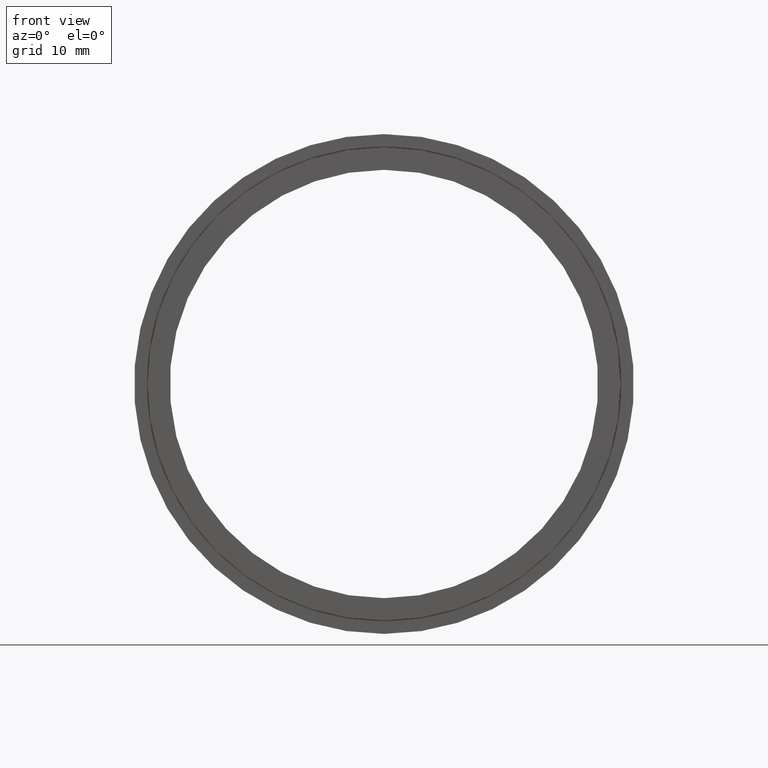
[diagram: clean part render]
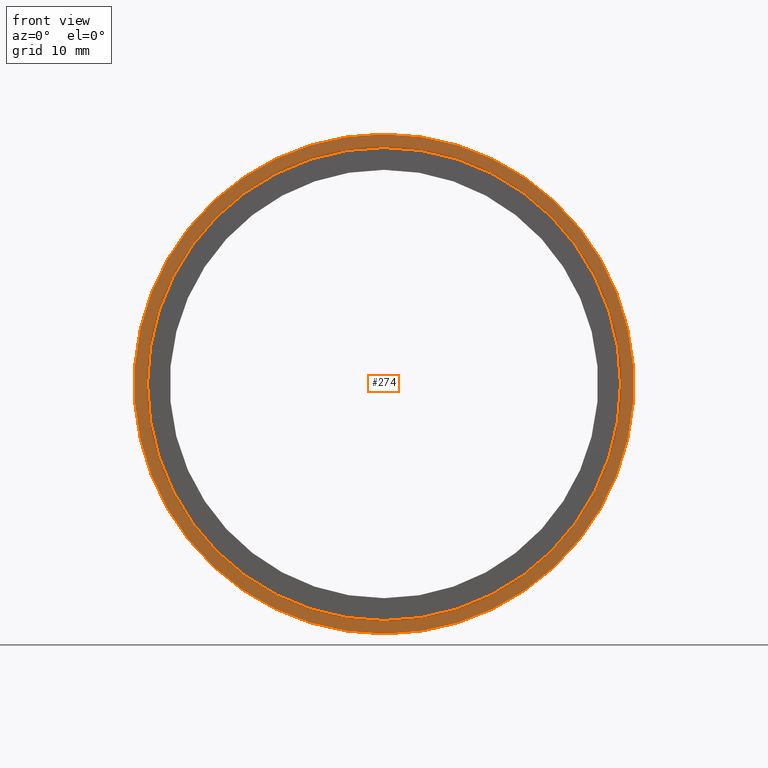
[diagram: same view with one face highlighted and labeled with its STEP entity id]
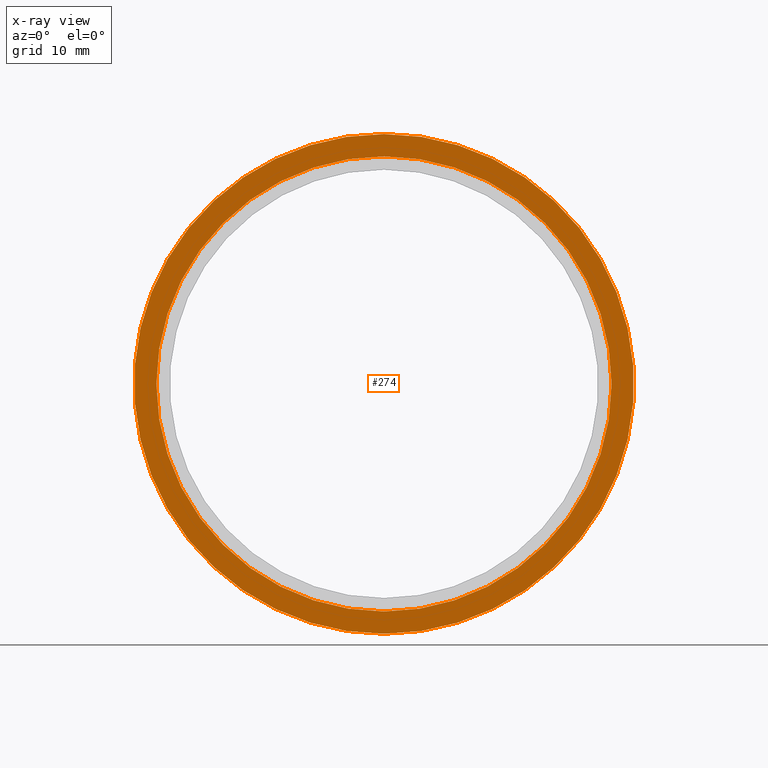
[diagram: x-ray of the same camera — body ghosted, the highlighted face saturated]
A machine part, front view. The second image highlights one B-rep face of the part: STEP entity #274.
The next image is the same camera in x-ray: the body ghosted, the highlighted face saturated — about 0% of this face is hidden behind the body in this view.
In plain terms, the highlighted planar face has unit normal (0, -1, -0).
Its self-contained STEP definition (entity closure, byte-faithful):
#44 = DIRECTION ( 'NONE',  ( -0.0000000000000000000, -1.000000000000000000, -0.0000000000000000000 ) ) ;
#45 = CIRCLE ( 'NONE', #411, 25.50000000000000000 ) ;
#72 = FACE_BOUND ( 'NONE', #223, .T. ) ;
#73 = CARTESIAN_POINT ( 'NONE',  ( 0.0000000000000000000, 5.000000000000000000, 0.0000000000000000000 ) ) ;
#95 = ORIENTED_EDGE ( 'NONE', *, *, #506, .F. ) ;
#96 = CIRCLE ( 'NONE', #513, 25.50000000000000000 ) ;
#121 = CARTESIAN_POINT ( 'NONE',  ( 3.429011037612589700E-015, 5.000000000000000000, 28.00000000000000400 ) ) ;
#126 = EDGE_CURVE ( 'NONE', #351, #337, #151, .T. ) ;
#135 = PLANE ( 'NONE',  #620 ) ;
#151 = CIRCLE ( 'NONE', #522, 28.00000000000000000 ) ;
#182 = DIRECTION ( 'NONE',  ( -0.0000000000000000000, -1.000000000000000000, -0.0000000000000000000 ) ) ;
#185 = CARTESIAN_POINT ( 'NONE',  ( 0.0000000000000000000, 5.000000000000000000, 0.0000000000000000000 ) ) ;
#193 = DIRECTION ( 'NONE',  ( 0.0000000000000000000, 0.0000000000000000000, -1.000000000000000000 ) ) ;
#223 = EDGE_LOOP ( 'NONE', ( #95, #265 ) ) ;
#229 = DIRECTION ( 'NONE',  ( 0.0000000000000000000, 0.0000000000000000000, -1.000000000000000000 ) ) ;
#232 = EDGE_CURVE ( 'NONE', #337, #351, #510, .T. ) ;
#265 = ORIENTED_EDGE ( 'NONE', *, *, #271, .F. ) ;
#271 = EDGE_CURVE ( 'NONE', #534, #431, #45, .T. ) ;
#274 = ADVANCED_FACE ( 'NONE', ( #568, #72 ), #135, .T. ) ;
#287 = ORIENTED_EDGE ( 'NONE', *, *, #232, .T. ) ;
#305 = AXIS2_PLACEMENT_3D ( 'NONE', #73, #182, #639 ) ;
#313 = DIRECTION ( 'NONE',  ( 0.0000000000000000000, 0.0000000000000000000, -1.000000000000000000 ) ) ;
#337 = VERTEX_POINT ( 'NONE', #630 ) ;
#351 = VERTEX_POINT ( 'NONE', #121 ) ;
#411 = AXIS2_PLACEMENT_3D ( 'NONE', #185, #552, #497 ) ;
#415 = CARTESIAN_POINT ( 'NONE',  ( 0.0000000000000000000, 5.000000000000000000, 0.0000000000000000000 ) ) ;
#431 = VERTEX_POINT ( 'NONE', #574 ) ;
#444 = CARTESIAN_POINT ( 'NONE',  ( 25.50000000000000000, 5.000000000000000000, 0.0000000000000000000 ) ) ;
#460 = CARTESIAN_POINT ( 'NONE',  ( 0.0000000000000000000, 5.000000000000000000, 0.0000000000000000000 ) ) ;
#497 = DIRECTION ( 'NONE',  ( 0.0000000000000000000, 0.0000000000000000000, -1.000000000000000000 ) ) ;
#506 = EDGE_CURVE ( 'NONE', #431, #534, #96, .T. ) ;
#510 = CIRCLE ( 'NONE', #305, 28.00000000000000000 ) ;
#513 = AXIS2_PLACEMENT_3D ( 'NONE', #415, #44, #313 ) ;
#522 = AXIS2_PLACEMENT_3D ( 'NONE', #460, #661, #229 ) ;
#534 = VERTEX_POINT ( 'NONE', #562 ) ;
#549 = DIRECTION ( 'NONE',  ( 0.0000000000000000000, -1.000000000000000000, -0.0000000000000000000 ) ) ;
#552 = DIRECTION ( 'NONE',  ( -0.0000000000000000000, -1.000000000000000000, -0.0000000000000000000 ) ) ;
#562 = CARTESIAN_POINT ( 'NONE',  ( 3.122849337825750200E-015, 5.000000000000000000, 25.50000000000000000 ) ) ;
#568 = FACE_OUTER_BOUND ( 'NONE', #610, .T. ) ;
#574 = CARTESIAN_POINT ( 'NONE',  ( 0.0000000000000000000, 5.000000000000000000, -25.50000000000000000 ) ) ;
#610 = EDGE_LOOP ( 'NONE', ( #287, #617 ) ) ;
#617 = ORIENTED_EDGE ( 'NONE', *, *, #126, .T. ) ;
#620 = AXIS2_PLACEMENT_3D ( 'NONE', #444, #549, #193 ) ;
#630 = CARTESIAN_POINT ( 'NONE',  ( 0.0000000000000000000, 5.000000000000000000, -28.00000000000000000 ) ) ;
#639 = DIRECTION ( 'NONE',  ( 0.0000000000000000000, 0.0000000000000000000, -1.000000000000000000 ) ) ;
#661 = DIRECTION ( 'NONE',  ( -0.0000000000000000000, -1.000000000000000000, -0.0000000000000000000 ) ) ;